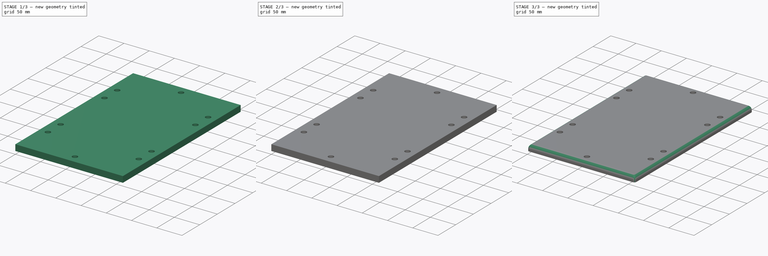
[diagram: build sequence overview — one tinted view per stage of 3, left to right]
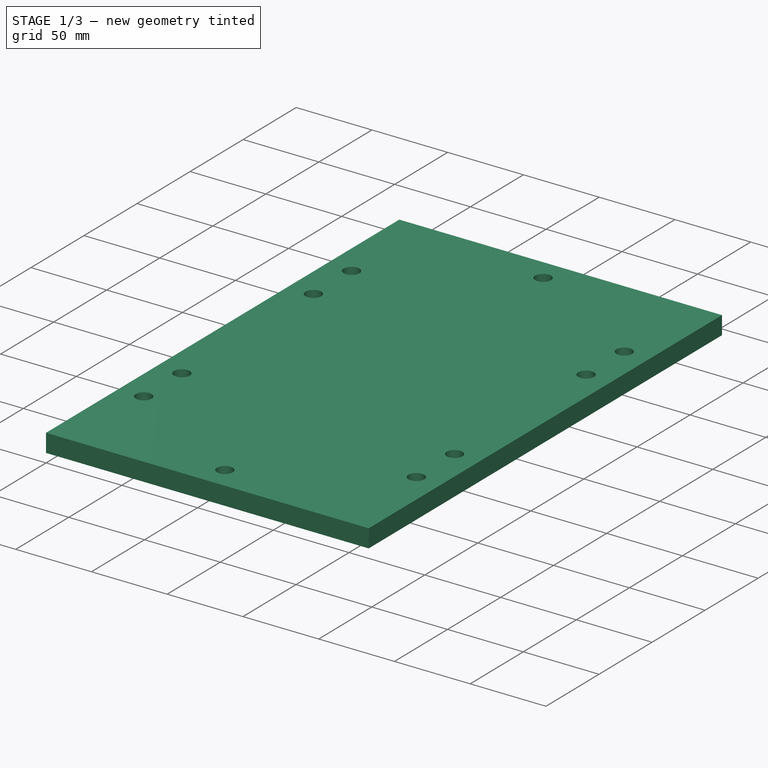
[diagram: stage 1 of 3 — iso view after this stage's code; geometry added in this stage tinted green]
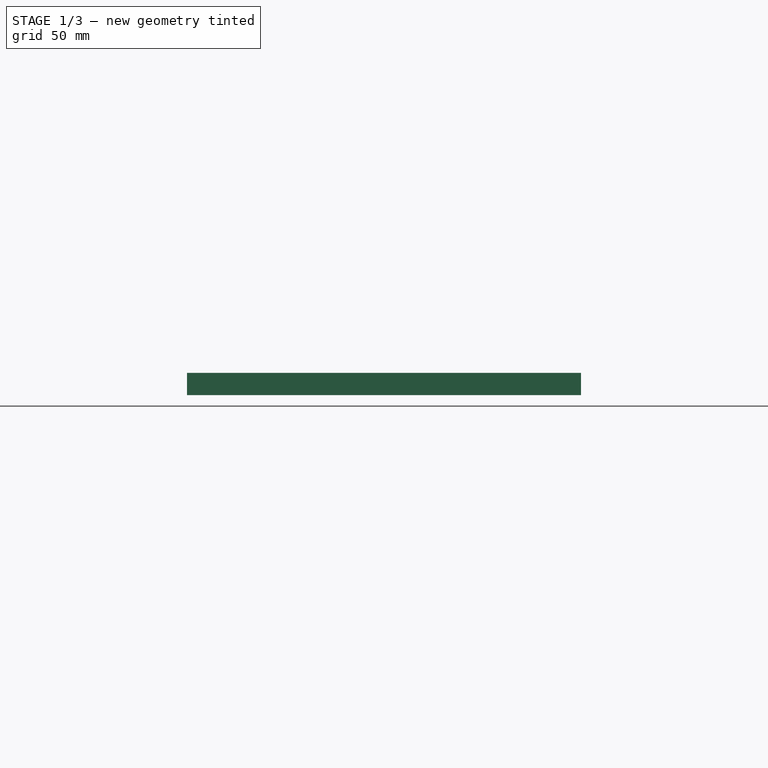
[diagram: stage 1 of 3 — front view after this stage's code; geometry added in this stage tinted green]
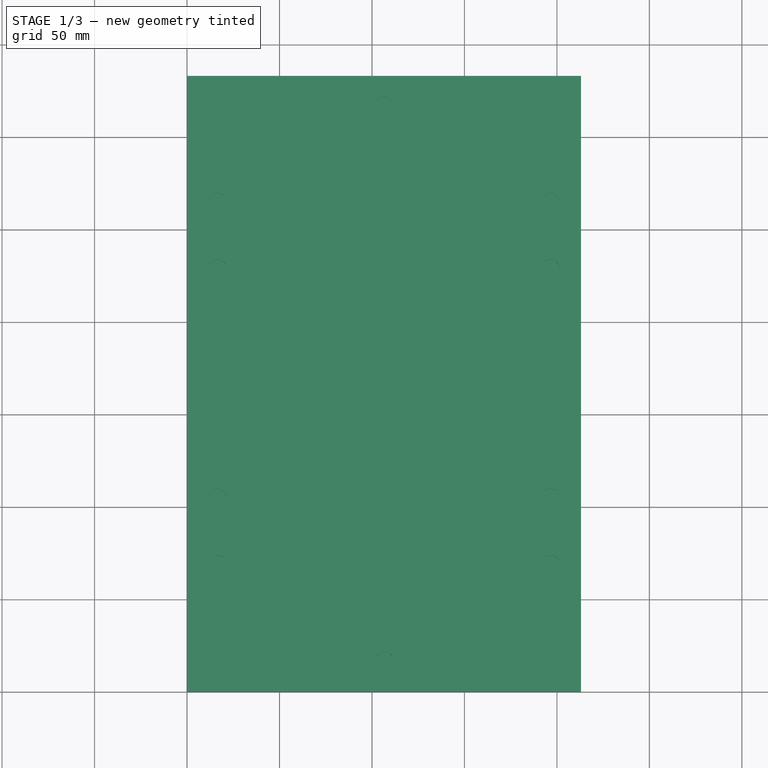
[diagram: stage 1 of 3 — top view after this stage's code; geometry added in this stage tinted green]
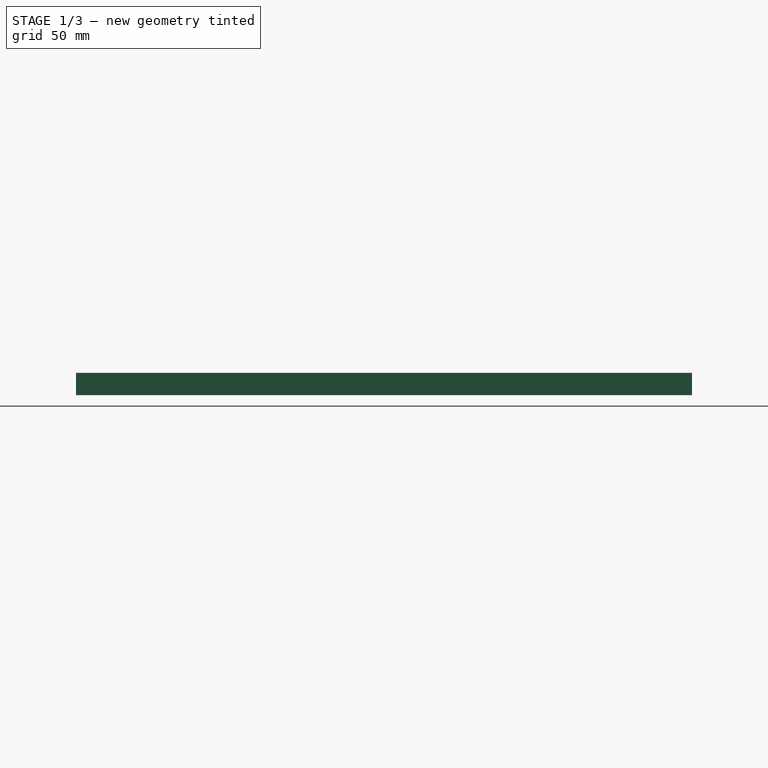
[diagram: stage 1 of 3 — right view after this stage's code; geometry added in this stage tinted green]
FCSTD DOCUMENT  (FreeCAD 0.17R9796 (Git))
Label: topbottomNG2b
License: All rights reserved
LicenseURL: http://en.wikipedia.org/wiki/All_rights_reserved
objects: Sketcher::SketchObject×3, PartDesign::Pocket×2, PartDesign::Fillet×2, PartDesign::Pad×1, PartDesign::Body×1
note: 12 computed .brp shape members not serialized (recipe doc carries the construction recipe); baked Part::Feature solids carry a one-line shape summary decoded from their .brp

FEATURE [Sketcher::SketchObject] Sketch
  MapMode = 5
  Support = -> [XY_Plane]
  sketch-geometry (4):
    g0: LineSegment StartX=0 StartY=333 StartZ=0 EndX=213 EndY=333 EndZ=0
    g1: LineSegment StartX=213 StartY=333 StartZ=0 EndX=213 EndY=0 EndZ=0
    g2: LineSegment StartX=213 StartY=0 StartZ=0 EndX=0 EndY=0 EndZ=0
    g3: LineSegment StartX=0 StartY=0 StartZ=0 EndX=0 EndY=333 EndZ=0
  constraints (11):
    c: Coincident(g0,g1)
    c: Coincident(g1,g2)
    c: Coincident(g2,g3)
    c: Coincident(g3,g0)
    c: Horizontal(g0)
    c: Horizontal(g2)
    c: Vertical(g1)
    c: Vertical(g3)
    c: DistanceY(g3,g3) = 333
    c: DistanceX(g2,g2) = 213
    c: Coincident(g2,g-1)
FEATURE [PartDesign::Pad] Pad
  Length = 12
  Length2 = 100
  Profile = -> Sketch
  Type = 0
FEATURE [Sketcher::SketchObject] Sketch001
  MapMode = 5
  Placement = pos=(0,0,12) rot=(0,0,1;0rad)
  Support = -> [Pad]
  sketch-geometry (10):
    g0: Circle CenterX=16.5 CenterY=264.5 CenterZ=0 NormalX=0 NormalY=0 NormalZ=1 Radius=5.2
    g1: Circle CenterX=16.5 CenterY=228.5 CenterZ=0 NormalX=0 NormalY=0 NormalZ=1 Radius=5.2
    g2: Circle CenterX=16.5 CenterY=104.5 CenterZ=0 NormalX=0 NormalY=0 NormalZ=1 Radius=5.2
    g3: Circle CenterX=16.5 CenterY=68.5 CenterZ=0 NormalX=0 NormalY=0 NormalZ=1 Radius=5.2
    g4: Circle CenterX=196.5 CenterY=264.5 CenterZ=0 NormalX=0 NormalY=0 NormalZ=1 Radius=5.2
    g5: Circle CenterX=196.5 CenterY=228.5 CenterZ=0 NormalX=0 NormalY=0 NormalZ=1 Radius=5.2
    g6: Circle CenterX=196.5 CenterY=104.5 CenterZ=0 NormalX=0 NormalY=0 NormalZ=1 Radius=5.2
    g7: Circle CenterX=196.5 CenterY=68.5 CenterZ=0 NormalX=0 NormalY=0 NormalZ=1 Radius=5.2
    g8: Circle CenterX=106.5 CenterY=316.5 CenterZ=0 NormalX=0 NormalY=0 NormalZ=1 Radius=5.2
    g9: Circle CenterX=106.5 CenterY=16.5 CenterZ=0 NormalX=0 NormalY=0 NormalZ=1 Radius=5.2
  constraints (27):
    c: DistanceY(g-1,g9) = 16.5
    c: DistanceX(g-1,g3) = 16.5
    c: DistanceX(g3,g2) = 0
    c: DistanceX(g2,g1) = 0
    c: DistanceX(g1,g0) = 0
    c: DistanceY(g-1,g8) = 316.5
    c: DistanceX(g-1,g7) = 196.5
    c: DistanceX(g6,g7) = 0
    c: DistanceX(g5,g6) = 0
    c: DistanceX(g4,g5) = 0
    c: DistanceX(g-1,g9) = 106.5
    c: DistanceX(g8,g9) = 0
    c: DistanceY(g-1,g3) = 68.5
    c: DistanceY(g7,g3) = 0
    c: DistanceY(g3,g2) = 36
    c: DistanceY(g2,g1) = 124
    c: DistanceY(g1,g0) = 36
    c: DistanceY(g2,g6) = 0
    c: DistanceY(g5,g1) = 0
    c: DistanceY(g0,g4) = 0
    c: Radius(g8) = 5.2
    c: Equal(g8, g4-g7) x4
    c: Equal(g8,g9)
    c: Equal(g8,g3)
    c: Equal(g8,g2)
    c: Equal(g8,g1)
    c: Equal(g8,g0)
FEATURE [PartDesign::Pocket] Pocket
  BaseFeature = -> Pad
  Length = 5
  Profile = -> Sketch001
  Type = 0
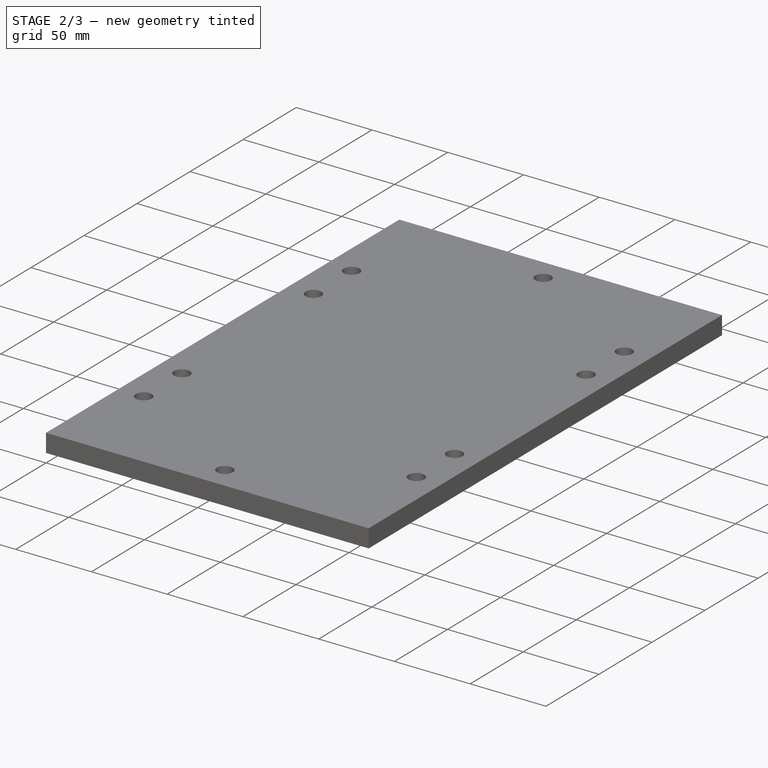
[diagram: stage 2 of 3 — iso view after this stage's code; geometry added in this stage tinted green]
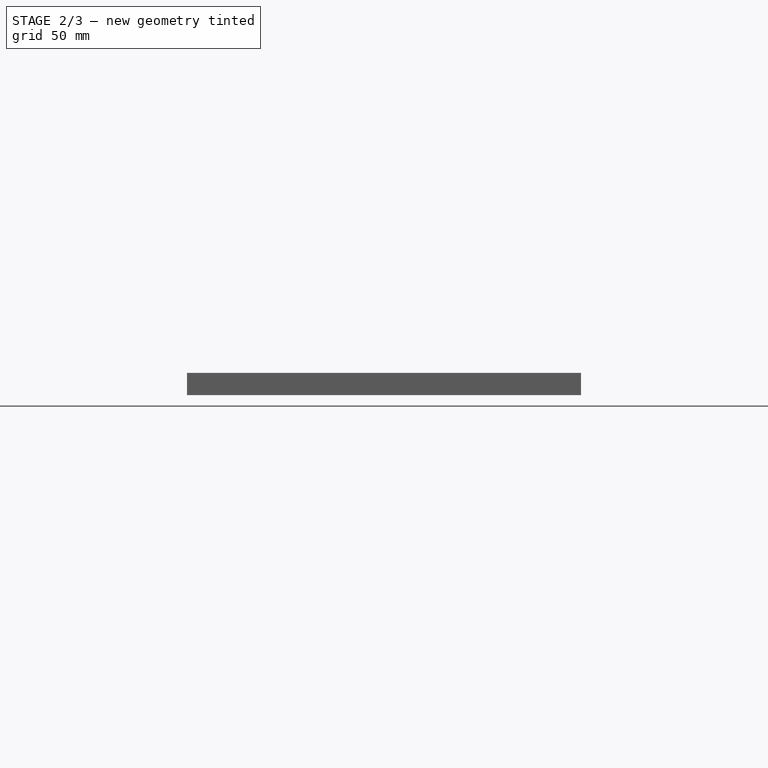
[diagram: stage 2 of 3 — front view after this stage's code; geometry added in this stage tinted green]
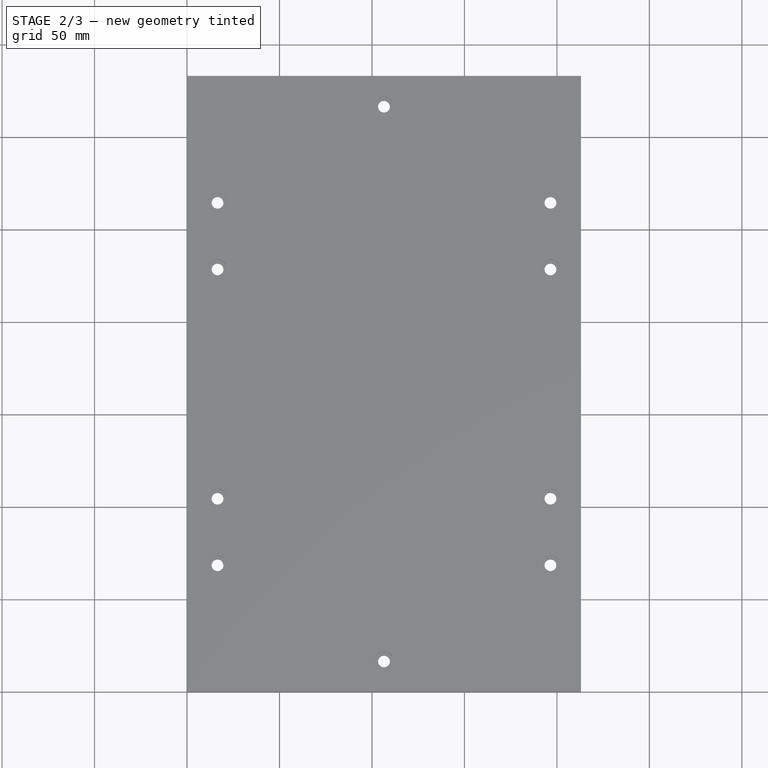
[diagram: stage 2 of 3 — top view after this stage's code; geometry added in this stage tinted green]
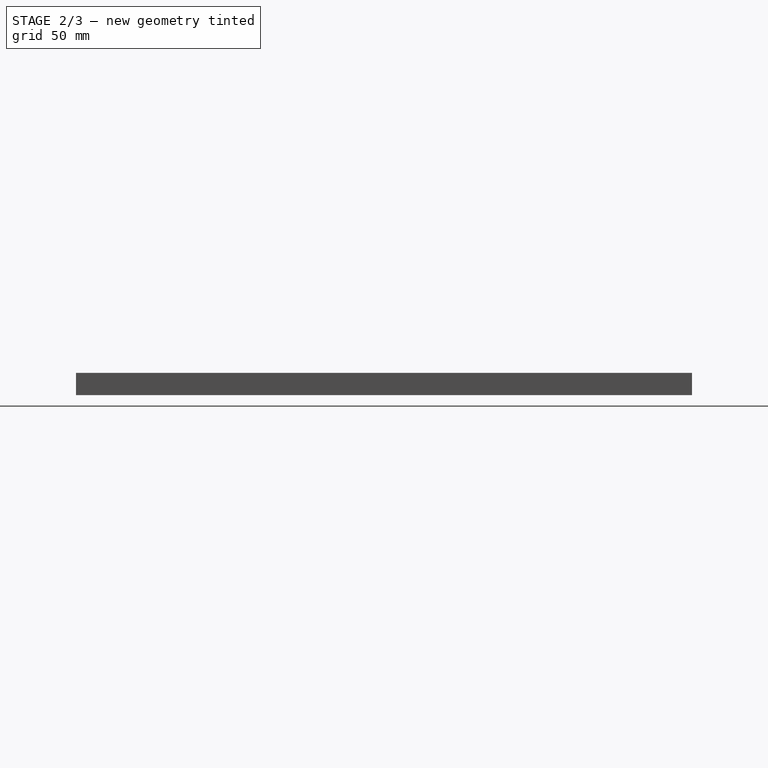
[diagram: stage 2 of 3 — right view after this stage's code; geometry added in this stage tinted green]
FEATURE [Sketcher::SketchObject] Sketch002
  MapMode = 5
  Placement = pos=(0,0,7) rot=(0,0,1;0rad)
  Support = -> [Pocket]
  sketch-geometry (10):
    g0: Circle CenterX=106.5 CenterY=316.5 CenterZ=0 NormalX=0 NormalY=0 NormalZ=1 Radius=3.2
    g1: Circle CenterX=16.5 CenterY=264.5 CenterZ=0 NormalX=0 NormalY=0 NormalZ=1 Radius=3.2
    g2: Circle CenterX=16.5 CenterY=228.5 CenterZ=0 NormalX=0 NormalY=0 NormalZ=1 Radius=3.2
    g3: Circle CenterX=16.5 CenterY=104.5 CenterZ=0 NormalX=0 NormalY=0 NormalZ=1 Radius=3.2
    g4: Circle CenterX=16.5 CenterY=68.5 CenterZ=0 NormalX=0 NormalY=0 NormalZ=1 Radius=3.2
    g5: Circle CenterX=106.5 CenterY=16.5 CenterZ=0 NormalX=0 NormalY=0 NormalZ=1 Radius=3.2
    g6: Circle CenterX=196.5 CenterY=68.5 CenterZ=0 NormalX=0 NormalY=0 NormalZ=1 Radius=3.2
    g7: Circle CenterX=196.5 CenterY=104.5 CenterZ=0 NormalX=0 NormalY=0 NormalZ=1 Radius=3.2
    g8: Circle CenterX=196.5 CenterY=228.5 CenterZ=0 NormalX=0 NormalY=0 NormalZ=1 Radius=3.2
    g9: Circle CenterX=196.5 CenterY=264.5 CenterZ=0 NormalX=0 NormalY=0 NormalZ=1 Radius=3.2
  constraints (30):
    c: DistanceY(g-1,g5) = 16.5
    c: DistanceX(g-1,g4) = 16.5
    c: DistanceX(g4,g3) = 0
    c: DistanceX(g3,g2) = 0
    c: DistanceX(g2,g1) = 0
    c: DistanceY(g-1,g0) = 316.5
    c: DistanceX(g-1,g6) = 196.5
    c: DistanceX(g7,g6) = 0
    c: DistanceX(g8,g7) = 0
    c: DistanceX(g9,g8) = 0
    c: DistanceY(g-1,g4) = 68.5
    c: DistanceY(g4,g3) = 36
    c: DistanceY(g3,g2) = 124
    c: DistanceY(g2,g1) = 36
    c: DistanceY(g1,g9) = 0
    c: DistanceY(g8,g2) = 0
    c: DistanceY(g3,g7) = 0
    c: DistanceY(g4,g6) = 0
    c: DistanceX(g-1,g5) = 106.5
    c: DistanceX(g5,g0) = 0
    c: Radius(g0) = 3.2
    c: Equal(g0,g9)
    c: Equal(g0,g8)
    c: Equal(g0,g7)
    c: Equal(g0,g6)
    c: Equal(g0,g5)
    c: Equal(g0,g4)
    c: Equal(g0,g3)
    c: Equal(g0,g2)
    c: Equal(g0,g1)
FEATURE [PartDesign::Pocket] Pocket001
  BaseFeature = -> Pocket
  Length = 7
  Profile = -> Sketch002
  Type = 0
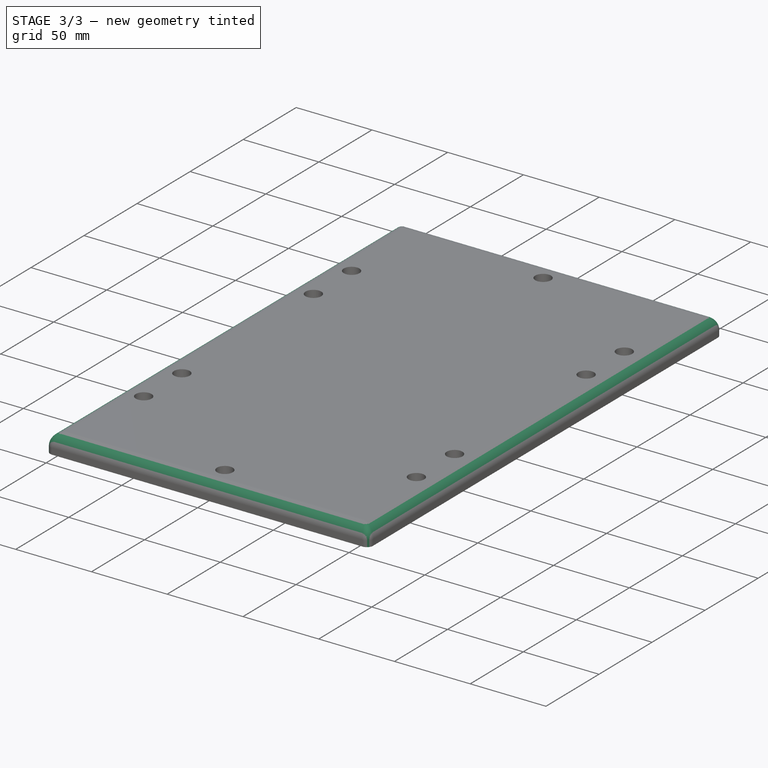
[diagram: stage 3 of 3 — iso view after this stage's code; geometry added in this stage tinted green]
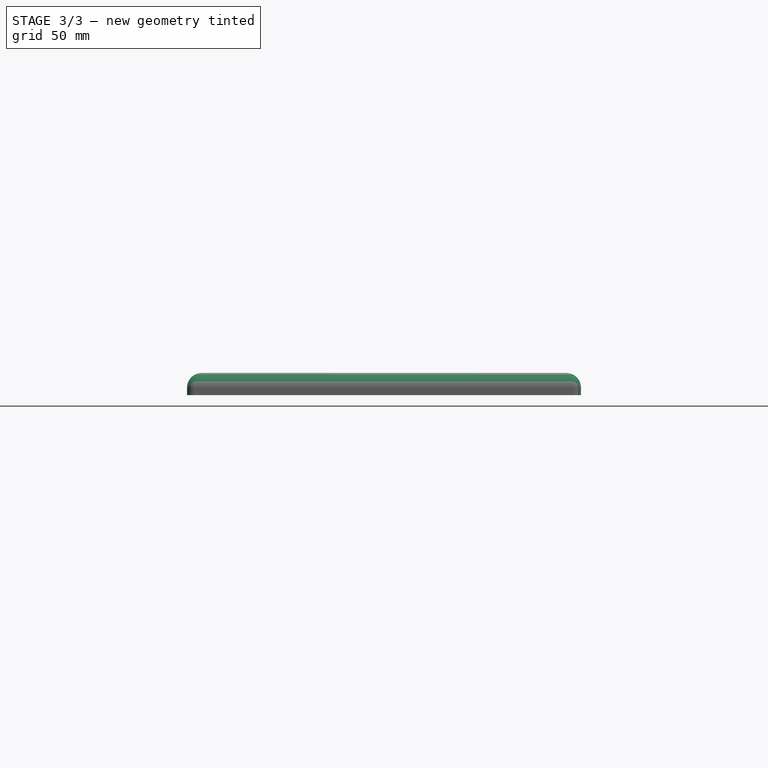
[diagram: stage 3 of 3 — front view after this stage's code; geometry added in this stage tinted green]
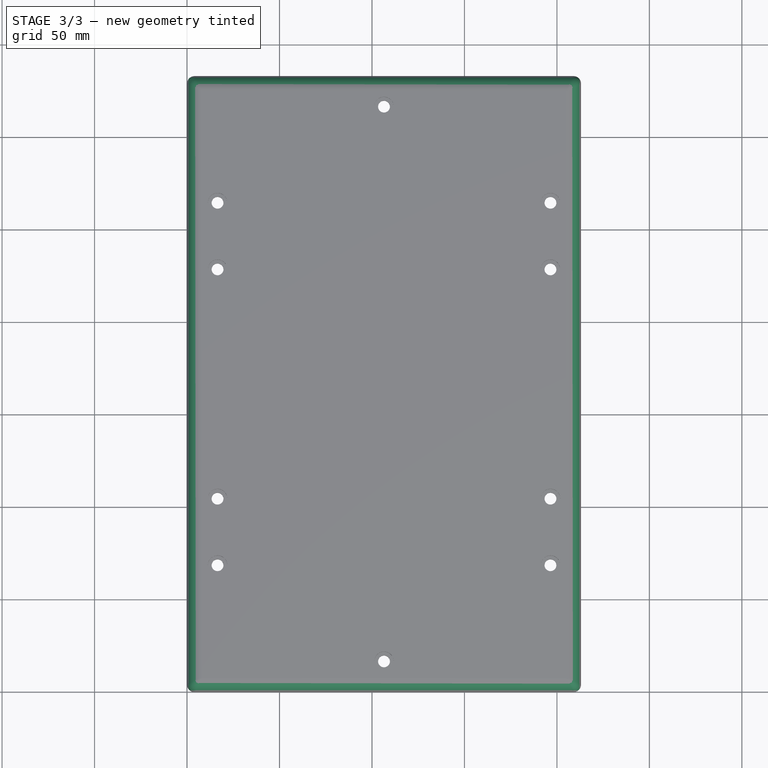
[diagram: stage 3 of 3 — top view after this stage's code; geometry added in this stage tinted green]
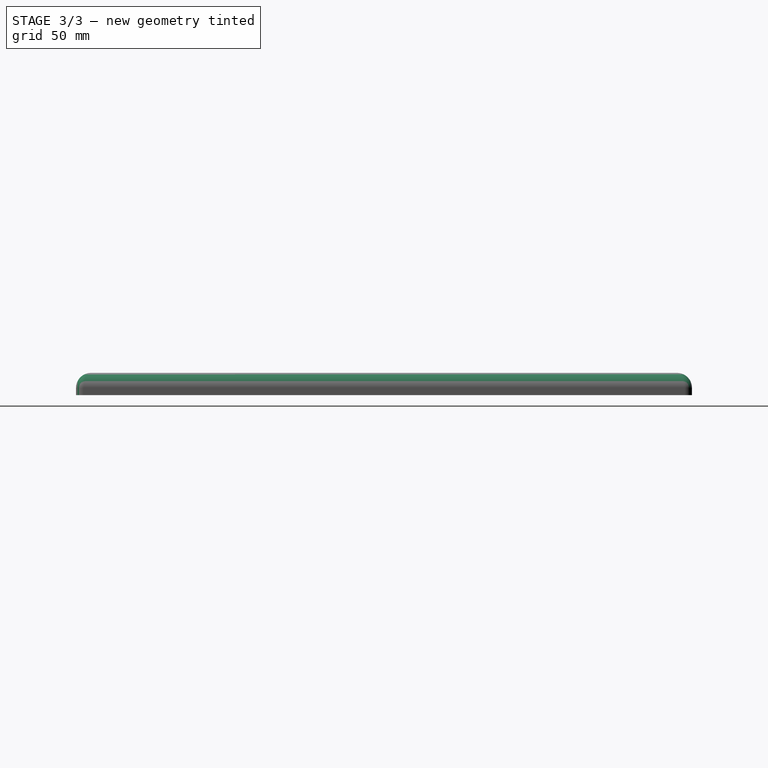
[diagram: stage 3 of 3 — right view after this stage's code; geometry added in this stage tinted green]
FEATURE [PartDesign::Fillet] Fillet
  Base = -> Pocket001 [Edge22,Edge10,Edge4,Edge7]
  BaseFeature = -> Pocket001
  Radius = 8
FEATURE [PartDesign::Fillet] Fillet001
  Base = -> Fillet [Edge5,Edge26,Edge24,Edge40,Edge4,Edge10,Edge1,Edge8]
  BaseFeature = -> Fillet
  Radius = 4
FEATURE [PartDesign::Body] Body
  Group = -> [Sketch,Pad,Sketch001,Pocket,Sketch002,Pocket001,Fillet,Fillet001]
  Origin = -> BodyOrigin
  Tip = -> Fillet001
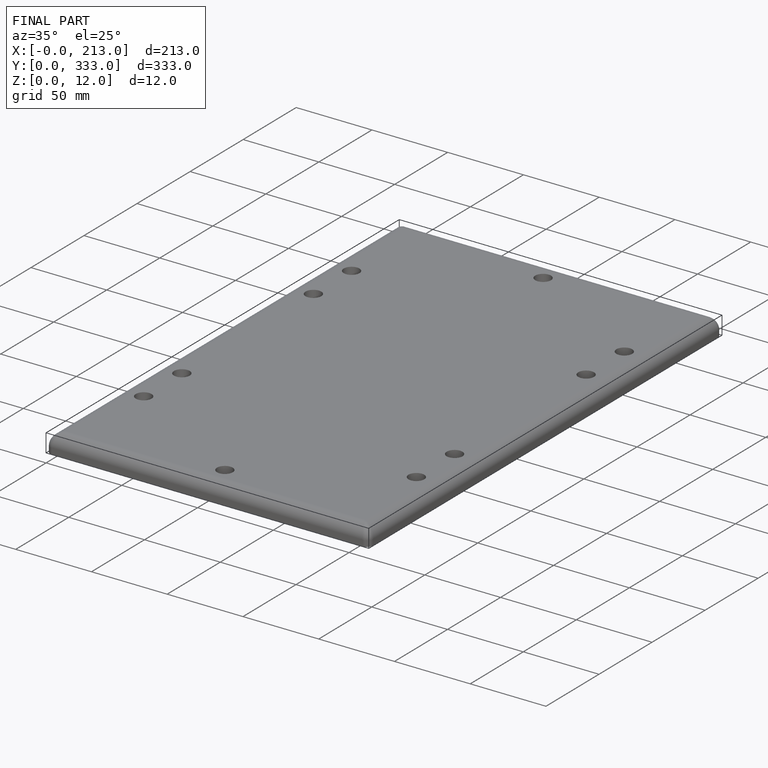
[diagram: finished part — iso view with bounding-box wireframe]
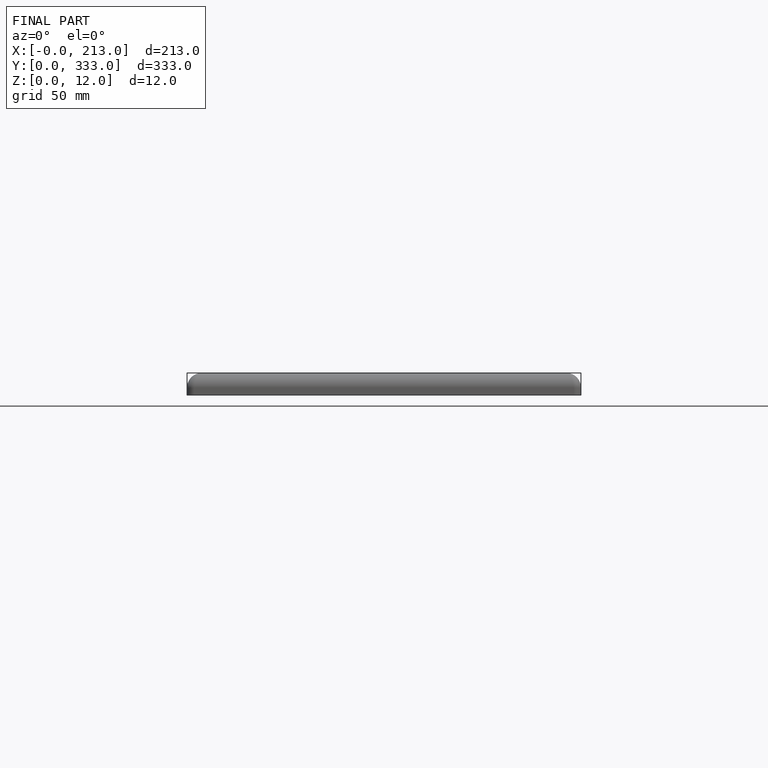
[diagram: finished part — front view with bounding-box wireframe]
